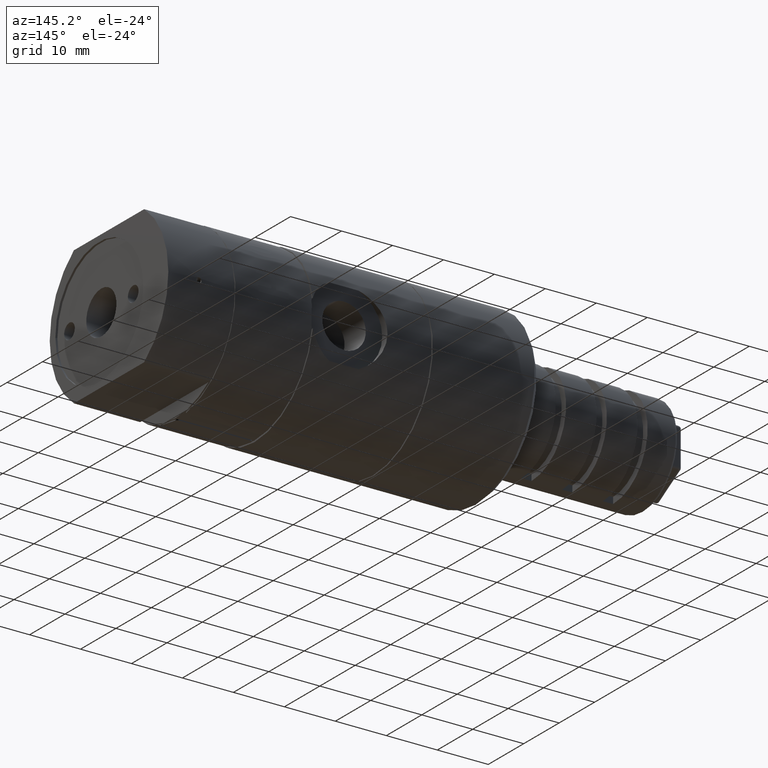
[diagram: clean part render]
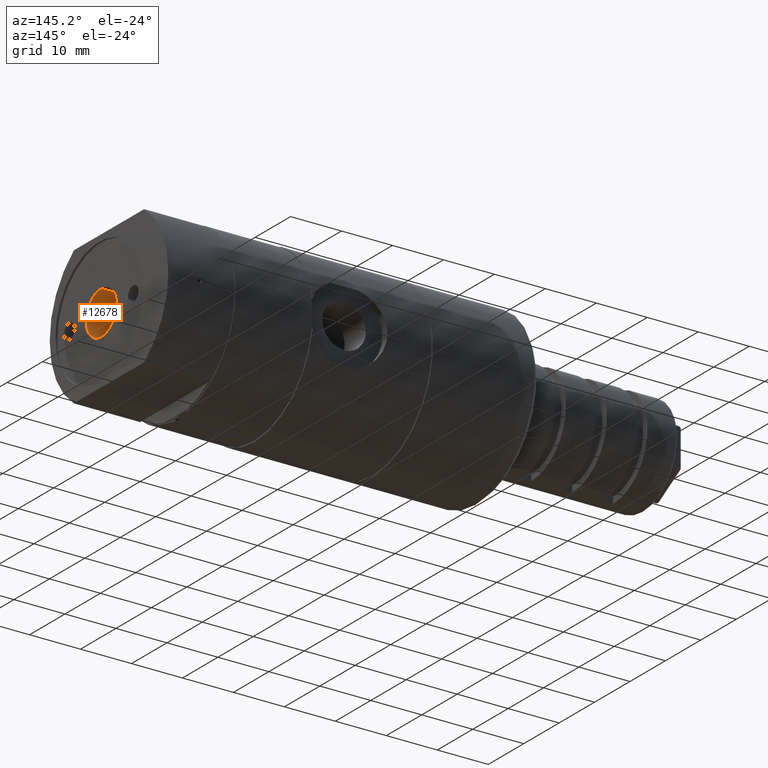
[diagram: same view with one face highlighted and labeled with its STEP entity id]
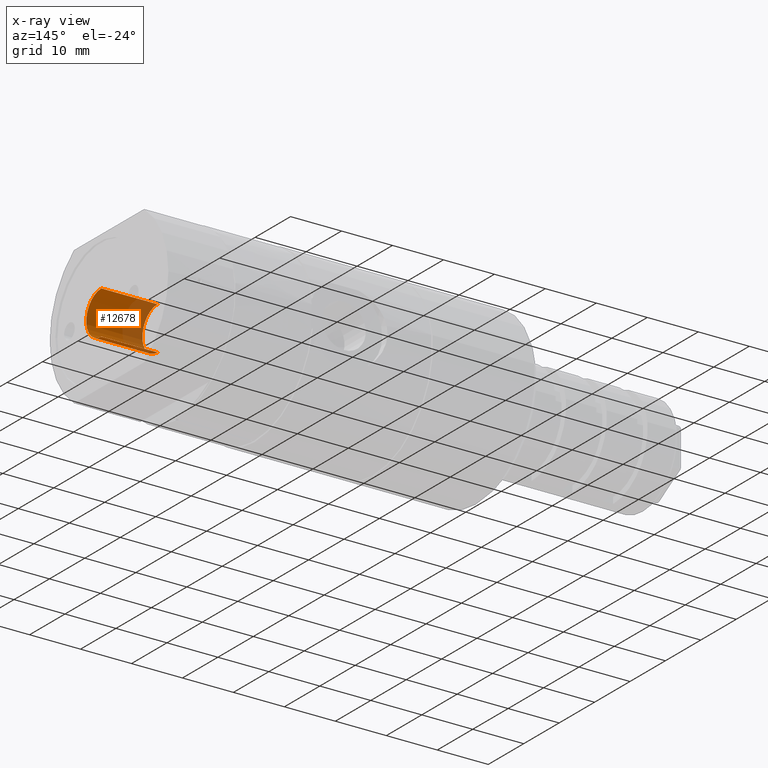
[diagram: x-ray of the same camera — body ghosted, the highlighted face saturated]
A machine part, auxiliary view. The second image highlights one B-rep face of the part: STEP entity #12678.
The next image is the same camera in x-ray: the body ghosted, the highlighted face saturated — about 36% of this face is hidden behind the body in this view.
In plain terms, the highlighted cylindrical surface (edge-blend (fillet) strip) has radius 4.25 mm, axis along (1, 0, 0).
Its self-contained STEP definition (entity closure, byte-faithful):
#199 = VERTEX_POINT ( 'NONE', #14146 ) ;
#945 = VERTEX_POINT ( 'NONE', #18495 ) ;
#963 = EDGE_CURVE ( 'NONE', #8403, #945, #3083, .T. ) ;
#1726 = CYLINDRICAL_SURFACE ( 'NONE', #9180, 4.250000000000000000 ) ;
#1755 = CIRCLE ( 'NONE', #15455, 4.250000000000000000 ) ;
#2539 = DIRECTION ( 'NONE',  ( 1.000000000000000000, 0.0000000000000000000, 0.0000000000000000000 ) ) ;
#3083 = LINE ( 'NONE', #3973, #5569 ) ;
#3561 = DIRECTION ( 'NONE',  ( 1.000000000000000000, 0.0000000000000000000, 0.0000000000000000000 ) ) ;
#3973 = CARTESIAN_POINT ( 'NONE',  ( -0.4000000000000000200, -2.749999999999999600, 4.250000000000000000 ) ) ;
#4302 = ORIENTED_EDGE ( 'NONE', *, *, #963, .T. ) ;
#4431 = ORIENTED_EDGE ( 'NONE', *, *, #7140, .T. ) ;
#4809 = EDGE_LOOP ( 'NONE', ( #15931, #4302, #4431, #17271 ) ) ;
#5346 = AXIS2_PLACEMENT_3D ( 'NONE', #17551, #5882, #7335 ) ;
#5569 = VECTOR ( 'NONE', #2539, 1000.000000000000000 ) ;
#5582 = VECTOR ( 'NONE', #13180, 1000.000000000000000 ) ;
#5882 = DIRECTION ( 'NONE',  ( 1.000000000000000000, 0.0000000000000000000, 0.0000000000000000000 ) ) ;
#7140 = EDGE_CURVE ( 'NONE', #945, #199, #1755, .T. ) ;
#7211 = CIRCLE ( 'NONE', #5346, 4.250000000000000000 ) ;
#7292 = DIRECTION ( 'NONE',  ( 1.000000000000000000, 0.0000000000000000000, 0.0000000000000000000 ) ) ;
#7335 = DIRECTION ( 'NONE',  ( 0.0000000000000000000, 0.0000000000000000000, -1.000000000000000000 ) ) ;
#8379 = CARTESIAN_POINT ( 'NONE',  ( -11.40000000000000000, -2.750000000000000000, -4.250000000000000000 ) ) ;
#8403 = VERTEX_POINT ( 'NONE', #11115 ) ;
#8514 = CARTESIAN_POINT ( 'NONE',  ( -0.4000000000000000200, -2.750000000000000000, 0.0000000000000000000 ) ) ;
#8933 = EDGE_CURVE ( 'NONE', #16422, #199, #16253, .T. ) ;
#9180 = AXIS2_PLACEMENT_3D ( 'NONE', #18022, #3561, #9276 ) ;
#9276 = DIRECTION ( 'NONE',  ( 0.0000000000000000000, 0.0000000000000000000, -1.000000000000000000 ) ) ;
#10312 = CARTESIAN_POINT ( 'NONE',  ( -0.4000000000000000200, -2.750000000000000000, -4.250000000000000000 ) ) ;
#11115 = CARTESIAN_POINT ( 'NONE',  ( -11.40000000000000000, -2.749999999999999600, 4.250000000000000000 ) ) ;
#11445 = DIRECTION ( 'NONE',  ( 0.0000000000000000000, 0.0000000000000000000, -1.000000000000000000 ) ) ;
#12678 = ADVANCED_FACE ( 'NONE', ( #15540 ), #1726, .F. ) ;
#13180 = DIRECTION ( 'NONE',  ( 1.000000000000000000, 0.0000000000000000000, 0.0000000000000000000 ) ) ;
#14146 = CARTESIAN_POINT ( 'NONE',  ( -0.4000000000000000200, -2.750000000000000000, -4.250000000000000000 ) ) ;
#15455 = AXIS2_PLACEMENT_3D ( 'NONE', #8514, #7292, #11445 ) ;
#15540 = FACE_OUTER_BOUND ( 'NONE', #4809, .T. ) ;
#15931 = ORIENTED_EDGE ( 'NONE', *, *, #17673, .F. ) ;
#16253 = LINE ( 'NONE', #10312, #5582 ) ;
#16422 = VERTEX_POINT ( 'NONE', #8379 ) ;
#17271 = ORIENTED_EDGE ( 'NONE', *, *, #8933, .F. ) ;
#17551 = CARTESIAN_POINT ( 'NONE',  ( -11.40000000000000000, -2.750000000000000000, 0.0000000000000000000 ) ) ;
#17673 = EDGE_CURVE ( 'NONE', #8403, #16422, #7211, .T. ) ;
#18022 = CARTESIAN_POINT ( 'NONE',  ( -0.4000000000000000200, -2.750000000000000000, 0.0000000000000000000 ) ) ;
#18495 = CARTESIAN_POINT ( 'NONE',  ( -0.4000000000000000200, -2.749999999999999600, 4.250000000000000000 ) ) ;